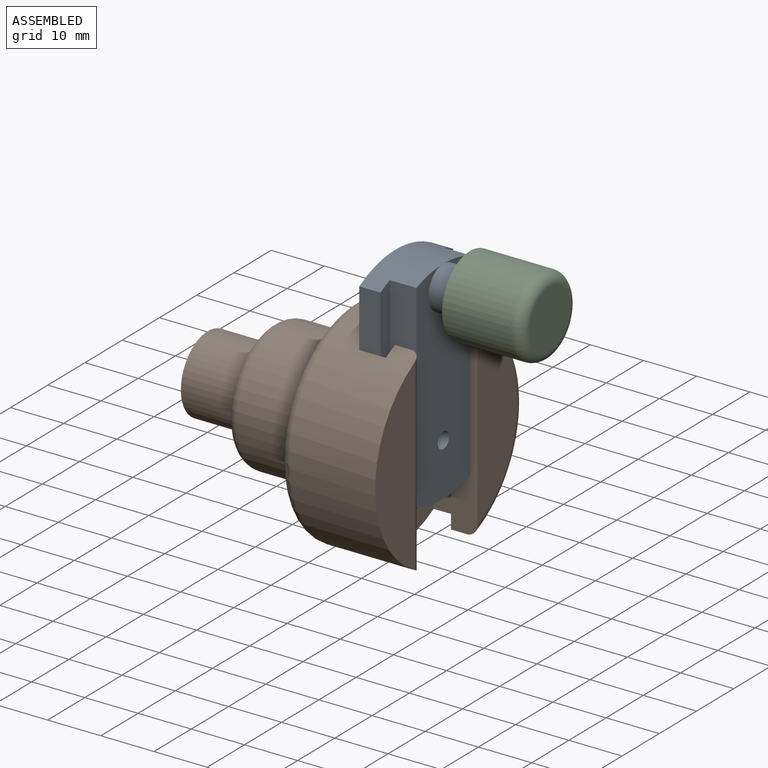
[diagram: assembled view]
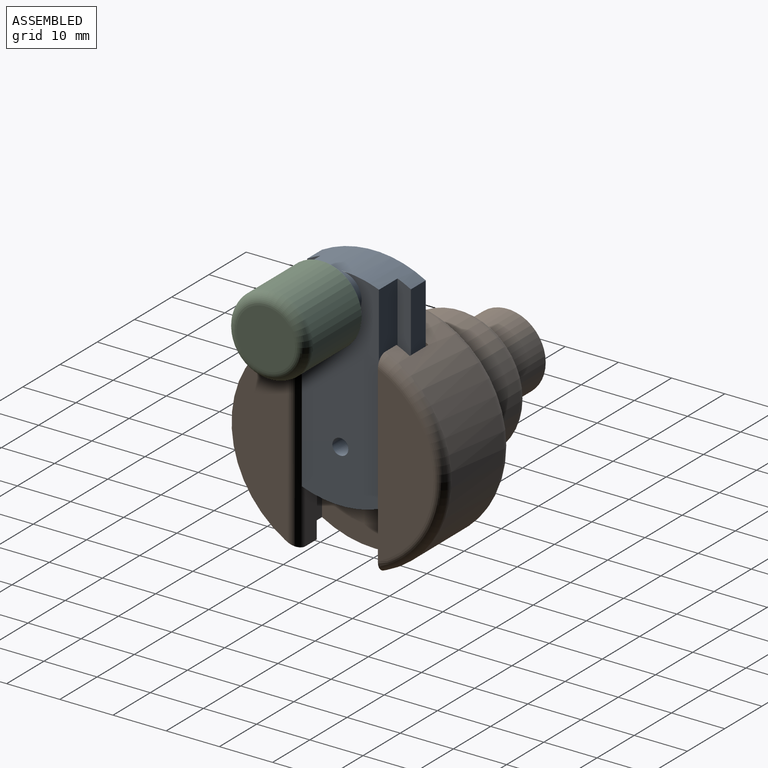
[diagram: assembled view, second angle]
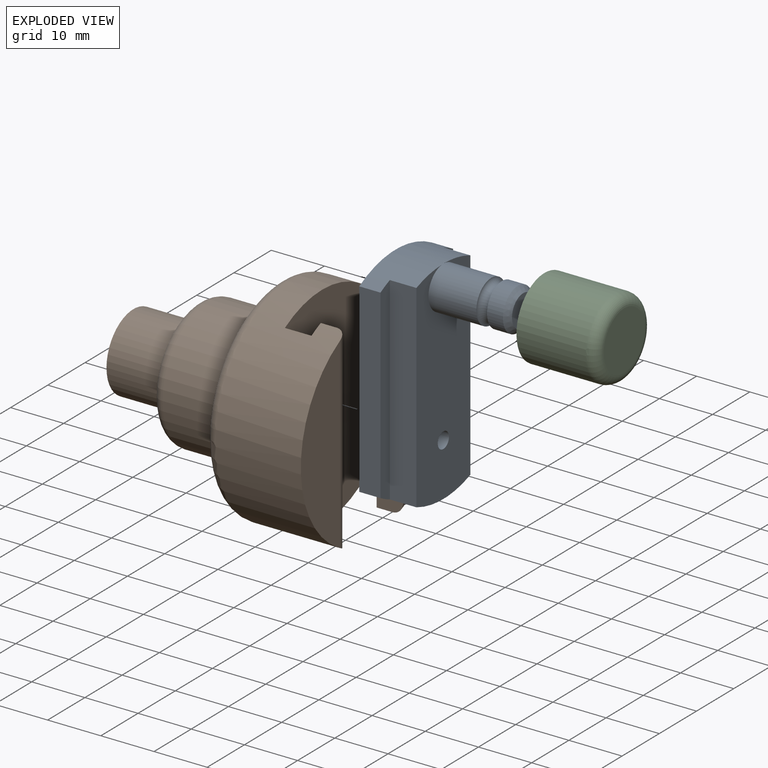
[diagram: exploded view]
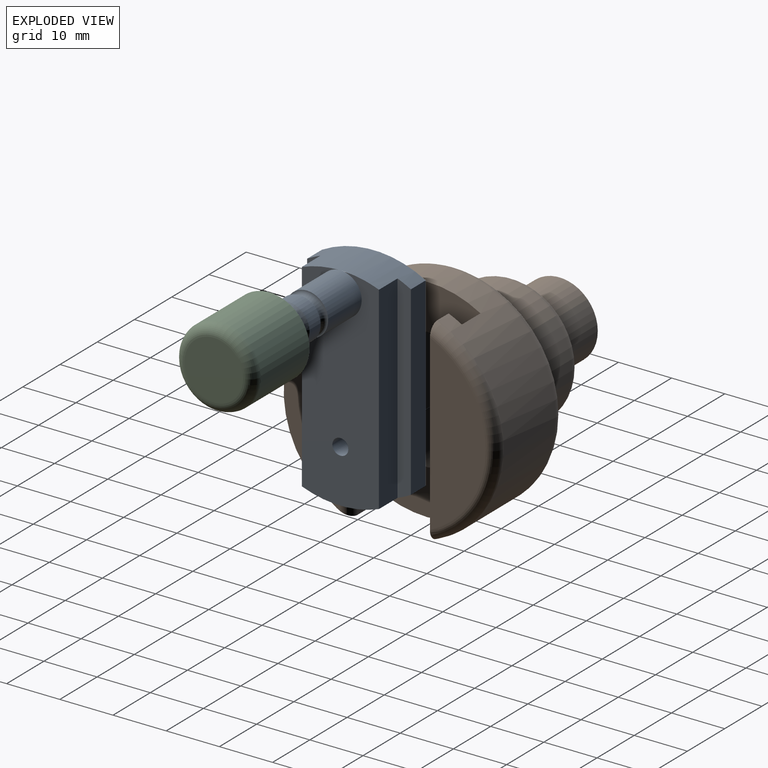
[diagram: exploded view, second angle]
ASSEMBLY  parts=3 mates=4
PART A: 16 faces, bbox 41.1x19.5x24 mm
  f0: cylinder r=4mm len=9mm, axis (0,0,-1), area 226.2mm2, adj f8,f12
  f1: plane 37.28x5mm, normal (0,1,0), area 186.4mm2, adj f7,f8,f9,f10
  f2: plane 37.28x5mm, normal (0,-1,0), area 186.4mm2, adj f3,f8,f9,f10
  f3: plane 37.28x2.5mm, normal (0,0,1), area 90.4mm2, adj f2,f4,f9,f10
  f4: plane 34.93x4mm, normal (0,-1,0), area 139.7mm2, adj f3,f5,f9,f10
  f5: plane 40x19.5mm, normal (0,0,-1), area 740.8mm2, adj f4,f6,f9,f10,f11
  f6: plane 34.93x4mm, normal (0,1,0), area 139.7mm2, adj f5,f7,f9,f10
  f7: plane 37.28x2.5mm, normal (0,0,1), area 90.4mm2, adj f1,f6,f9,f10
  f8: plane 40x14.5mm, normal (0,0,1), area 509.7mm2, adj f0,f1,f2,f9,f10,f11
  f9: cylinder r=20mm len=19.5mm, axis (0,0,1), area 155.7mm2, adj f1,f2,f3,f4,f5,f6,f7,f8
  f10: cylinder r=20mm len=19.5mm, axis (0,0,1), area 155.7mm2, adj f1,f2,f3,f4,f5,f6,f7,f8
  f11: cylinder r=1.5mm len=9mm, axis (0,0,1), area 84.8mm2, adj f5,f8
  f12: torus R=4mm, axis (0,0,-1), area 66.4mm2, adj f0,f14
  f13: plane 6x6mm, normal (0,0,1), area 28.3mm2, adj f15
  f14: cylinder r=4mm len=8mm, axis (0,0,-1), area 75.4mm2, adj f12,f15
  f15: cone r=3mm half-angle=45deg, axis (0,0,-1), area 31.1mm2, adj f13,f14
PART B: 34 faces, bbox 45.5x43.3x43.3 mm
  f0: plane 40x20mm, normal (1,0,0), area 698.2mm2, adj f1,f20,f21,f25,f26,f27,f28
  f1: cylinder r=20mm len=40mm, axis (-1,0,0), area 1537.7mm2, adj f0,f2,f18,f19,f20,f21,f22,f23
  f2: cylinder r=20mm len=5mm, axis (-1,0,0), area 13mm2, adj f1,f18,f22,f24,f31
  f3: plane 32.73x10.5mm, normal (1,0,0), area 247mm2, adj f23,f30
  f4: cylinder r=4.5mm len=27.5mm, axis (-1,0,0), area 274.8mm2, adj f5,f10,f13,f16
  f5: plane 14.4x14.4mm, normal (-1,0,0), area 86mm2, adj f4,f8,f9,f10,f11,f12,f13,f14
  f6: cylinder r=12.2mm len=24.4mm, axis (-1,0,0), area 1034.8mm2, adj f17,f33
  f7: plane 20.4x20.4mm, normal (-1,0,0), area 164mm2, adj f8,f33
  f8: cylinder r=7.2mm len=14.4mm, axis (-1,0,0), area 542.9mm2, adj f5,f7
  f9: cylinder r=4.5mm len=27.5mm, axis (-1,0,0), area 274.8mm2, adj f5,f11,f14,f16
  f10: plane 27.5x1.97mm, normal (0,0,-1), area 54.1mm2, adj f4,f5,f12,f16
  f11: plane 27.5x1.97mm, normal (0,0,1), area 54.1mm2, adj f5,f9,f12,f16
  f12: plane 27.5x4mm, normal (0,-1,0), area 110mm2, adj f5,f10,f11,f16
  f13: plane 27.5x1.97mm, normal (0,0,-1), area 54.1mm2, adj f4,f5,f15,f16
  f14: plane 27.5x1.97mm, normal (0,0,1), area 54.1mm2, adj f5,f9,f15,f16
  f15: plane 27.5x4mm, normal (0,1,0), area 110mm2, adj f5,f13,f14,f16
  f16: plane 12x9mm, normal (-1,0,0), area 76.8mm2, adj f4,f9,f10,f11,f12,f13,f14,f15
  f17: plane 36x36mm, normal (-1,0,0), area 550.3mm2, adj f6,f32
  f18: plane 35.2x10.5mm, normal (1,0,0), area 263.1mm2, adj f1,f2,f31
  f19: plane 37.08x2.5mm, normal (-1,0,0), area 89.8mm2, adj f1,f20,f23
  f20: plane 34.64x5mm, normal (0,-1,0), area 173.2mm2, adj f0,f1,f19
  f21: plane 34.64x5mm, normal (0,1,0), area 173.2mm2, adj f0,f1,f22
  f22: plane 37.08x2.5mm, normal (-1,0,0), area 89.8mm2, adj f1,f2,f21,f24
  f23: plane 37.08x5mm, normal (0,-1,0), area 183.5mm2, adj f1,f3,f19,f30
  f24: plane 37.08x3mm, normal (0,1,0), area 111.2mm2, adj f1,f2,f22,f31
  f25: plane 20x5mm, normal (0,1,0), area 100mm2, adj f0,f26,f28,f29
  f26: cylinder r=1.5mm len=5mm, axis (1,0,0), area 23.6mm2, adj f0,f25,f27,f29
  f27: plane 20x5mm, normal (0,-1,0), area 100mm2, adj f0,f26,f28,f29
  f28: cylinder r=1.5mm len=5mm, axis (1,0,0), area 23.6mm2, adj f0,f25,f27,f29
  f29: plane 23x3mm, normal (1,0,0), area 67.1mm2, adj f25,f26,f27,f28
  f30: torus R=18mm, axis (1,0,0), area 141.8mm2, adj f1,f3,f23
  f31: cylinder r=2mm len=37.08mm, axis (0,0,-1), area 114.5mm2, adj f1,f2,f18,f24
  f32: torus R=18mm, axis (1,0,0), area 380.4mm2, adj f1,f17
  f33: torus R=10.2mm, axis (1,0,0), area 226.5mm2, adj f6,f7
PART C: 13 faces, bbox 16.2x16.2x15 mm
  f0: cylinder r=4.5mm len=9mm, axis (0,0,-1), area 107.4mm2, adj f3,f11
  f1: cylinder r=7.5mm len=15mm, axis (0,0,-1), area 612.6mm2, adj f3,f10
  f2: plane 11x11mm, normal (0,0,1), area 95mm2, adj f10
  f3: plane 15x15mm, normal (0,0,-1), area 113.1mm2, adj f0,f1
  f4: plane 8.6x8.6mm, normal (0,0,-1), area 2.7mm2, adj f6,f11
  f5: plane 8.6x8.6mm, normal (0,0,1), area 2.7mm2, adj f6,f12
  f6: torus R=4.2mm, axis (0,0,-1), area 38.3mm2, adj f4,f5
  f7: plane 7x7mm, normal (0,0,-1), area 38.5mm2, adj f8
  f8: cone r=3.5mm half-angle=45deg, axis (0,0,-1), area 35.5mm2, adj f7,f9
  f9: cylinder r=4.5mm len=9mm, axis (0,0,-1), area 107.4mm2, adj f8,f12
  f10: torus R=5.5mm, axis (0,0,1), area 133.7mm2, adj f1,f2
  f11: torus R=4.3mm, axis (0,0,1), area 8.7mm2, adj f0,f4
  f12: torus R=4.3mm, axis (0,0,-1), area 8.7mm2, adj f5,f9
PLACE A rot(axis=(-0.71,0,-0.71),180deg) t=(38.58,-0.25,30.67)mm
PLACE B t=(-5.92,0,0)mm fixed
PLACE C rot(axis=(0.66,0.35,0.66),141.8deg) t=(43.58,-0.25,26.67)mm
MATE planar A.f5 <-> B.f33  axis (-1,0,0) through (29.58,-10,10.67)mm
MATE cylindrical C.f0 <-> A.f12  axis (-1,0,0) through (43.58,-0.25,26.67)mm
MATE planar C.f0 <-> A.f0  axis (-1,0,0) through (53.58,-0.25,26.67)mm
MATE planar A.f1 <-> B.f24  axis (0,-1,0) through (36.08,-7.5,10.67)mm
